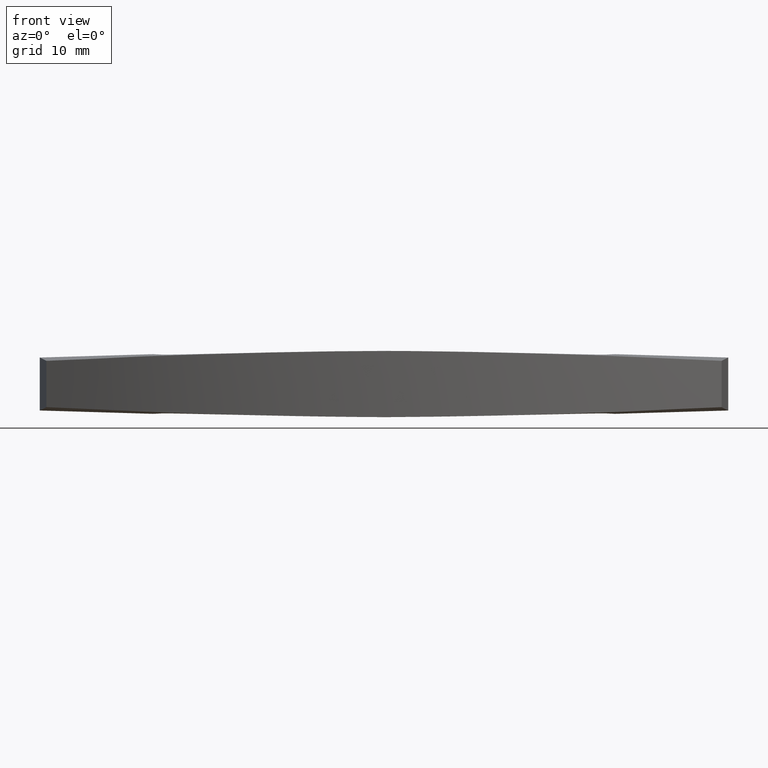
[diagram: clean part render]
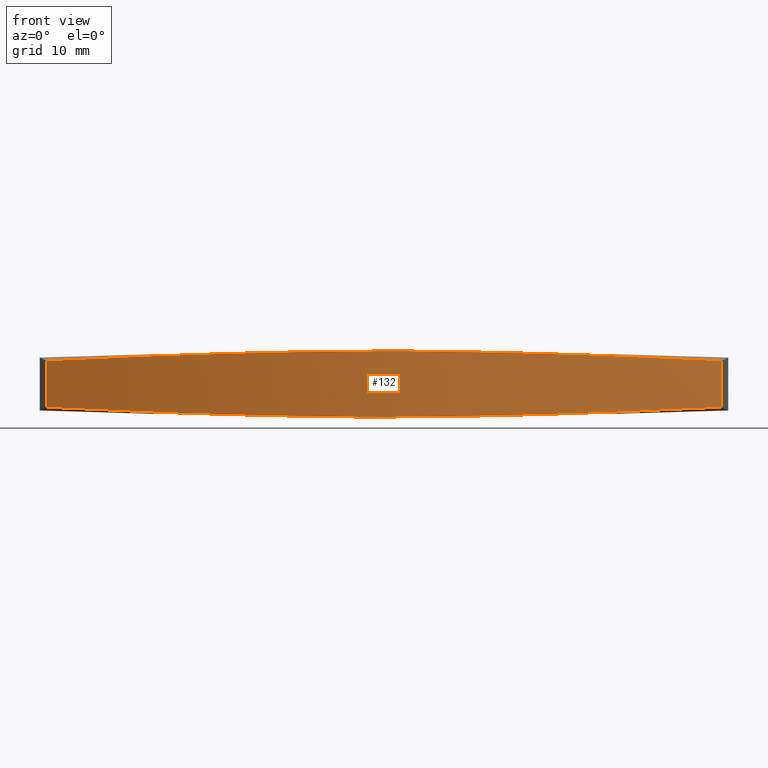
[diagram: same view with one face highlighted and labeled with its STEP entity id]
A machine part, front view. The second image highlights one B-rep face of the part: STEP entity #132.
In plain terms, the highlighted cylindrical surface (partial cylindrical patch) has radius 120 mm, axis along (-0, 0, -1).
Its self-contained STEP definition (entity closure, byte-faithful):
#132=ADVANCED_FACE('',(#258),#257,.T.);
#257=CYLINDRICAL_SURFACE('',#459,1.20000000000E+02);
#258=FACE_OUTER_BOUND('',#460,.T.);
#456=CARTESIAN_POINT('',(-1.47104979033E-14,-5.25624999398E+00,-9.69996000000E+01));
#457=DIRECTION('',(-8.15266839054E-21,-1.00000000000E+00,-2.12555598723E-17));
#458=DIRECTION('',(4.59410007655E-01,1.88759598230E-17,-8.88224321254E-01));
#459=AXIS2_PLACEMENT_3D('',#456,#457,#458);
#460=EDGE_LOOP('',(#732,#733,#734,#735));
#732=ORIENTED_EDGE('',*,*,#840,.T.);
#733=ORIENTED_EDGE('',*,*,#825,.F.);
#734=ORIENTED_EDGE('',*,*,#841,.T.);
#735=ORIENTED_EDGE('',*,*,#842,.F.);
#825=EDGE_CURVE('',#1027,#1034,#1035,.T.);
#840=EDGE_CURVE('',#1138,#1034,#1139,.T.);
#841=EDGE_CURVE('',#1027,#1145,#1146,.T.);
#842=EDGE_CURVE('',#1138,#1145,#1152,.T.);
#1027=VERTEX_POINT('',#1394);
#1034=VERTEX_POINT('',#1398);
#1035=LINE('',#1399,#1400);
#1138=VERTEX_POINT('',#1470);
#1139=(BOUNDED_CURVE() B_SPLINE_CURVE(3,(#1471,#1472,#1473,#1474,#1475,#1476,#1477,#1478,#1479,#1480,#1481,#1482,#1483,#1484,#1485,#1486,#1487,#1488,#1489,#1490,#1491,#1492,#1493,#1494,#1495,#1496,#1497,#1498,#1499,#1500,#1501,#1502,#1503,#1504,#1505,#1506,#1507,#1508,#1509,#1510,#1511,#1512,#1513,#1514,#1515,#1516,#1517,#1518,#1519,#1520,#1521,#1522,#1523,#1524,#1525,#1526,#1527,#1528,#1529,#1530,#1531,#1532,#1533,#1534,#1535,#1536),.UNSPECIFIED.,.F.,.F.) B_SPLINE_CURVE_WITH_KNOTS((4,2,2,2,2,2,2,2,2,2,2,2,2,2,2,2,2,2,2,2,2,2,2,2,2,2,2,2,2,2,2,2,4),(0.00000000000E+00,3.12500000000E-02,6.25000000000E-02,9.37500000000E-02,1.25000000000E-01,1.56250000000E-01,1.87500000000E-01,2.18750000000E-01,2.50000000000E-01,2.81250000000E-01,3.12500000000E-01,3.43750000000E-01,3.75000000000E-01,3.90625000000E-01,4.06250000000E-01,4.37500000000E-01,5.00000000000E-01,5.62500000000E-01,5.93750000000E-01,6.25000000000E-01,6.56250000000E-01,6.87500000000E-01,7.18750000000E-01,7.50000000000E-01,7.65625000000E-01,7.81250000000E-01,8.12500000000E-01,8.43750000000E-01,8.75000000000E-01,9.06250000000E-01,9.37500000000E-01,9.68750000000E-01,1.00000000000E+00),.UNSPECIFIED.) CURVE() GEOMETRIC_REPRESENTATION_ITEM() RATIONAL_B_SPLINE_CURVE((1.00000000000E+00,1.00000000000E+00,1.00000000000E+00,1.00000000000E+00,1.00000000000E+00,1.00000000000E+00,1.00000000000E+00,1.00000000000E+00,1.00000000000E+00,1.00000000000E+00,1.00000000000E+00,1.00000000000E+00,1.00000000000E+00,1.00000000000E+00,1.00000000000E+00,1.00000000000E+00,1.00000000000E+00,1.00000000000E+00,1.00000000000E+00,1.00000000000E+00,1.00000000000E+00,1.00000000000E+00,1.00000000000E+00,1.00000000000E+00,1.00000000000E+00,1.00000000000E+00,1.00000000000E+00,1.00000000000E+00,1.00000000000E+00,1.00000000000E+00,1.00000000000E+00,1.00000000000E+00,1.00000000000E+00,1.00000000000E+00,1.00000000000E+00,1.00000000000E+00,1.00000000000E+00,1.00000000000E+00,1.00000000000E+00,1.00000000000E+00,1.00000000000E+00,1.00000000000E+00,1.00000000000E+00,1.00000000000E+00,1.00000000000E+00,1.00000000000E+00,1.00000000000E+00,1.00000000000E+00,1.00000000000E+00,1.00000000000E+00,1.00000000000E+00,1.00000000000E+00,1.00000000000E+00,1.00000000000E+00,1.00000000000E+00,1.00000000000E+00,1.00000000000E+00,1.00000000000E+00,1.00000000000E+00,1.00000000000E+00,1.00000000000E+00,1.00000000000E+00,1.00000000000E+00,1.00000000000E+00,1.00000000000E+00,1.00000000000E+00)) REPRESENTATION_ITEM('') );
#1145=VERTEX_POINT('',#1537);
#1146=(BOUNDED_CURVE() B_SPLINE_CURVE(3,(#1538,#1539,#1540,#1541,#1542,#1543,#1544,#1545,#1546,#1547,#1548,#1549,#1550,#1551,#1552,#1553,#1554,#1555,#1556,#1557,#1558,#1559,#1560,#1561,#1562,#1563,#1564,#1565,#1566,#1567,#1568,#1569,#1570,#1571,#1572,#1573,#1574,#1575,#1576,#1577,#1578,#1579,#1580,#1581,#1582,#1583,#1584,#1585,#1586,#1587,#1588,#1589,#1590,#1591,#1592,#1593,#1594,#1595,#1596,#1597,#1598,#1599,#1600,#1601,#1602,#1603),.UNSPECIFIED.,.F.,.F.) B_SPLINE_CURVE_WITH_KNOTS((4,2,2,2,2,2,2,2,2,2,2,2,2,2,2,2,2,2,2,2,2,2,2,2,2,2,2,2,2,2,2,2,4),(0.00000000000E+00,3.12500000000E-02,6.25000000000E-02,9.37500000000E-02,1.25000000000E-01,1.56250000000E-01,1.87500000000E-01,2.18750000000E-01,2.50000000000E-01,2.81250000000E-01,3.12500000000E-01,3.43750000000E-01,3.75000000000E-01,3.90625000000E-01,4.06250000000E-01,4.37500000000E-01,5.00000000000E-01,5.62500000000E-01,5.93750000000E-01,6.25000000000E-01,6.56250000000E-01,6.87500000000E-01,7.18750000000E-01,7.50000000000E-01,7.65625000000E-01,7.81250000000E-01,8.12500000000E-01,8.43750000000E-01,8.75000000000E-01,9.06250000000E-01,9.37500000000E-01,9.68750000000E-01,1.00000000000E+00),.UNSPECIFIED.) CURVE() GEOMETRIC_REPRESENTATION_ITEM() RATIONAL_B_SPLINE_CURVE((1.00000000000E+00,1.00000000000E+00,1.00000000000E+00,1.00000000000E+00,1.00000000000E+00,1.00000000000E+00,1.00000000000E+00,1.00000000000E+00,1.00000000000E+00,1.00000000000E+00,1.00000000000E+00,1.00000000000E+00,1.00000000000E+00,1.00000000000E+00,1.00000000000E+00,1.00000000000E+00,1.00000000000E+00,1.00000000000E+00,1.00000000000E+00,1.00000000000E+00,1.00000000000E+00,1.00000000000E+00,1.00000000000E+00,1.00000000000E+00,1.00000000000E+00,1.00000000000E+00,1.00000000000E+00,1.00000000000E+00,1.00000000000E+00,1.00000000000E+00,1.00000000000E+00,1.00000000000E+00,1.00000000000E+00,1.00000000000E+00,1.00000000000E+00,1.00000000000E+00,1.00000000000E+00,1.00000000000E+00,1.00000000000E+00,1.00000000000E+00,1.00000000000E+00,1.00000000000E+00,1.00000000000E+00,1.00000000000E+00,1.00000000000E+00,1.00000000000E+00,1.00000000000E+00,1.00000000000E+00,1.00000000000E+00,1.00000000000E+00,1.00000000000E+00,1.00000000000E+00,1.00000000000E+00,1.00000000000E+00,1.00000000000E+00,1.00000000000E+00,1.00000000000E+00,1.00000000000E+00,1.00000000000E+00,1.00000000000E+00,1.00000000000E+00,1.00000000000E+00,1.00000000000E+00,1.00000000000E+00,1.00000000000E+00,1.00000000000E+00)) REPRESENTATION_ITEM('') );
#1152=LINE('',#1604,#1605);
#1394=CARTESIAN_POINT('',(-5.10000252651E+01,-3.50001763252E+00,1.16235900791E+01));
#1398=CARTESIAN_POINT('',(-5.10000252651E+01,3.50001763252E+00,1.16235900791E+01));
#1399=CARTESIAN_POINT('',(-5.10000252651E+01,-3.50001763252E+00,1.16235900791E+01));
#1400=VECTOR('',#1401,7.00003526505E+00);
#1401=DIRECTION('',(-1.42107831232E-14,1.00000000000E+00,0.00000000000E+00));
#1470=CARTESIAN_POINT('',(5.10005567320E+01,3.50002836602E+00,1.16233405467E+01));
#1471=CARTESIAN_POINT('',(5.10005567320E+01,3.50002836602E+00,1.16233405467E+01));
#1472=CARTESIAN_POINT('',(4.99990027260E+01,3.53191644947E+00,1.20935893878E+01));
#1473=CARTESIAN_POINT('',(4.89934658437E+01,3.56917836643E+00,1.25488062897E+01));
#1474=CARTESIAN_POINT('',(4.69744928799E+01,3.65293437837E+00,1.34296082497E+01));
#1475=CARTESIAN_POINT('',(4.59610572541E+01,3.69944199791E+00,1.38551932338E+01));
#1476=CARTESIAN_POINT('',(4.39262770585E+01,3.79847733191E+00,1.46771037058E+01));
#1477=CARTESIAN_POINT('',(4.29049330410E+01,3.85102068843E+00,1.50734291993E+01));
#1478=CARTESIAN_POINT('',(4.08542340362E+01,3.95675366119E+00,1.58371347740E+01));
#1479=CARTESIAN_POINT('',(3.98248733576E+01,4.00976409612E+00,1.62045170789E+01));
#1480=CARTESIAN_POINT('',(3.77579620699E+01,4.10943189535E+00,1.69105793602E+01));
#1481=CARTESIAN_POINT('',(3.67204138399E+01,4.15617011627E+00,1.72492576519E+01));
#1482=CARTESIAN_POINT('',(3.46371024728E+01,4.24178966088E+00,1.78980126803E+01));
#1483=CARTESIAN_POINT('',(3.35913397397E+01,4.28068863067E+00,1.82080886338E+01));
#1484=CARTESIAN_POINT('',(3.14916798309E+01,4.35291588182E+00,1.87996388891E+01));
#1485=CARTESIAN_POINT('',(3.04377858166E+01,4.38634429937E+00,1.90811118784E+01));
#1486=CARTESIAN_POINT('',(2.83220212118E+01,4.45271407633E+00,1.96153801273E+01));
#1487=CARTESIAN_POINT('',(2.72601484531E+01,4.48558384455E+00,1.98681766565E+01));
#1488=CARTESIAN_POINT('',(2.51284134012E+01,4.55117308182E+00,2.03450025783E+01));
#1489=CARTESIAN_POINT('',(2.40585506426E+01,4.58387546456E+00,2.05690324615E+01));
#1490=CARTESIAN_POINT('',(2.19107366775E+01,4.64744466157E+00,2.09881824868E+01));
#1491=CARTESIAN_POINT('',(2.08327847052E+01,4.67828594326E+00,2.11833031089E+01));
#1492=CARTESIAN_POINT('',(1.86686189780E+01,4.73485186311E+00,2.15444262994E+01));
#1493=CARTESIAN_POINT('',(1.75824049788E+01,4.76057277979E+00,2.17104284596E+01));
#1494=CARTESIAN_POINT('',(1.54016410278E+01,4.80719564424E+00,2.20130097326E+01));
#1495=CARTESIAN_POINT('',(1.43070914533E+01,4.82810919888E+00,2.21495887323E+01));
#1496=CARTESIAN_POINT('',(1.26589770653E+01,4.85703079192E+00,2.23321049657E+01));
#1497=CARTESIAN_POINT('',(1.21081627833E+01,4.86627787438E+00,2.23892524576E+01));
#1498=CARTESIAN_POINT('',(1.10075060800E+01,4.88420114409E+00,2.24957576798E+01));
#1499=CARTESIAN_POINT('',(1.04574356014E+01,4.89288345360E+00,2.25451464881E+01));
#1500=CARTESIAN_POINT('',(8.80798813229E+00,4.91856349385E+00,2.26817971932E+01));
#1501=CARTESIAN_POINT('',(7.70937550200E+00,4.93514020660E+00,2.27575455157E+01));
#1502=CARTESIAN_POINT('',(4.41660481639E+00,4.97878234506E+00,2.29392473044E+01));
#1503=CARTESIAN_POINT('',(2.22551180931E+00,4.99975538627E+00,2.29996909166E+01));
#1504=CARTESIAN_POINT('',(-2.14837562156E+00,5.00024036304E+00,2.30010966875E+01));
#1505=CARTESIAN_POINT('',(-4.33116922158E+00,4.97965187488E+00,2.29420613971E+01));
#1506=CARTESIAN_POINT('',(-7.59936365699E+00,4.93671086174E+00,2.27645013133E+01));
#1507=CARTESIAN_POINT('',(-8.68776181648E+00,4.92037985997E+00,2.26904712650E+01));
#1508=CARTESIAN_POINT('',(-1.08625867703E+01,4.88660989978E+00,2.25127197560E+01));
#1509=CARTESIAN_POINT('',(-1.19490147868E+01,4.86929678193E+00,2.24089979754E+01));
#1510=CARTESIAN_POINT('',(-1.41198749924E+01,4.83154204524E+00,2.21717948691E+01));
#1511=CARTESIAN_POINT('',(-1.52043069387E+01,4.81107521936E+00,2.20383136378E+01));
#1512=CARTESIAN_POINT('',(-1.73711497892E+01,4.76535030234E+00,2.17414585590E+01));
#1513=CARTESIAN_POINT('',(-1.84535605687E+01,4.74007870947E+00,2.15780848447E+01));
#1514=CARTESIAN_POINT('',(-2.06163427790E+01,4.68424190892E+00,2.12212427107E+01));
#1515=CARTESIAN_POINT('',(-2.16967134742E+01,4.65359970753E+00,2.10277746720E+01));
#1516=CARTESIAN_POINT('',(-2.38554265403E+01,4.59000738034E+00,2.06104640768E+01));
#1517=CARTESIAN_POINT('',(-2.49337694029E+01,4.55710722610E+00,2.03866214891E+01));
#1518=CARTESIAN_POINT('',(-2.65497588256E+01,4.50743901572E+00,2.00278103334E+01));
#1519=CARTESIAN_POINT('',(-2.70881676456E+01,4.49081604996E+00,1.99043648207E+01));
#1520=CARTESIAN_POINT('',(-2.81644735397E+01,4.45746557062E+00,1.96497388212E+01));
#1521=CARTESIAN_POINT('',(-2.87018916843E+01,4.44075347012E+00,1.95186678536E+01));
#1522=CARTESIAN_POINT('',(-3.03096344803E+01,4.39039057112E+00,1.91147719663E+01));
#1523=CARTESIAN_POINT('',(-3.13763943509E+01,4.35667160309E+00,1.88310426814E+01));
#1524=CARTESIAN_POINT('',(-3.34996547581E+01,4.28399551326E+00,1.82348958662E+01));
#1525=CARTESIAN_POINT('',(-3.45561504674E+01,4.24490795532E+00,1.79224801160E+01));
#1526=CARTESIAN_POINT('',(-3.66588306893E+01,4.15885078737E+00,1.72691278559E+01));
#1527=CARTESIAN_POINT('',(-3.77050148011E+01,4.11186444993E+00,1.69281921977E+01));
#1528=CARTESIAN_POINT('',(-3.97871590761E+01,4.01164422825E+00,1.62178542588E+01));
#1529=CARTESIAN_POINT('',(-4.08231164696E+01,3.95832816022E+00,1.58484538765E+01));
#1530=CARTESIAN_POINT('',(-4.28850502605E+01,3.85201484689E+00,1.50810966706E+01));
#1531=CARTESIAN_POINT('',(-4.39110336673E+01,3.79920902241E+00,1.46831370198E+01));
#1532=CARTESIAN_POINT('',(-4.59532036171E+01,3.69977287070E+00,1.38584881276E+01));
#1533=CARTESIAN_POINT('',(-4.69693894125E+01,3.65312529328E+00,1.34317988098E+01));
#1534=CARTESIAN_POINT('',(-4.89920212123E+01,3.56919965445E+00,1.25494723028E+01));
#1535=CARTESIAN_POINT('',(-4.99984666073E+01,3.53190692334E+00,1.20938351236E+01));
#1536=CARTESIAN_POINT('',(-5.10000252651E+01,3.50001763252E+00,1.16235900791E+01));
#1537=CARTESIAN_POINT('',(5.10005567320E+01,-3.50002836602E+00,1.16233405467E+01));
#1538=CARTESIAN_POINT('',(-5.10000252651E+01,-3.50001763252E+00,1.16235900791E+01));
#1539=CARTESIAN_POINT('',(-4.99984689943E+01,-3.53190684734E+00,1.20938340028E+01));
#1540=CARTESIAN_POINT('',(-4.89929299227E+01,-3.56916988525E+00,1.25490459682E+01));
#1541=CARTESIAN_POINT('',(-4.69739527261E+01,-3.65292803169E+00,1.34298380189E+01));
#1542=CARTESIAN_POINT('',(-4.59605150567E+01,-3.69943666468E+00,1.38554180301E+01));
#1543=CARTESIAN_POINT('',(-4.39257309132E+01,-3.79847380720E+00,1.46773185216E+01));
#1544=CARTESIAN_POINT('',(-4.29043849913E+01,-3.85101795838E+00,1.50736390074E+01));
#1545=CARTESIAN_POINT('',(-4.08536823100E+01,-3.95675217359E+00,1.58373345330E+01));
#1546=CARTESIAN_POINT('',(-3.98243198584E+01,-4.00976303378E+00,1.62047117965E+01));
#1547=CARTESIAN_POINT('',(-3.77574051532E+01,-4.10943133463E+00,1.69107639605E+01));
#1548=CARTESIAN_POINT('',(-3.67198552794E+01,-4.15616965278E+00,1.72494371757E+01));
#1549=CARTESIAN_POINT('',(-3.46365407607E+01,-4.24178930337E+00,1.78981820127E+01));
#1550=CARTESIAN_POINT('',(-3.35907765197E+01,-4.28068828387E+00,1.82082528514E+01));
#1551=CARTESIAN_POINT('',(-3.14911137383E+01,-4.35291566614E+00,1.87997928368E+01));
#1552=CARTESIAN_POINT('',(-3.04372183596E+01,-4.38634421845E+00,1.90812606709E+01));
#1553=CARTESIAN_POINT('',(-2.83214511731E+01,-4.45271444370E+00,1.96155185697E+01));
#1554=CARTESIAN_POINT('',(-2.72595771960E+01,-4.48558449180E+00,1.98683099042E+01));
#1555=CARTESIAN_POINT('',(-2.51278398480E+01,-4.55117424913E+00,2.03451253985E+01));
#1556=CARTESIAN_POINT('',(-2.40579760115E+01,-4.58387687203E+00,2.05691500490E+01));
#1557=CARTESIAN_POINT('',(-2.19101600278E+01,-4.64744639876E+00,2.09882895710E+01));
#1558=CARTESIAN_POINT('',(-2.08322071145E+01,-4.67828776468E+00,2.11834049226E+01));
#1559=CARTESIAN_POINT('',(-1.86680396408E+01,-4.73485365650E+00,2.15445175334E+01));
#1560=CARTESIAN_POINT('',(-1.75818248371E+01,-4.76057449390E+00,2.17105143841E+01));
#1561=CARTESIAN_POINT('',(-1.54010594197E+01,-4.80719717089E+00,2.20130849981E+01));
#1562=CARTESIAN_POINT('',(-1.43065091834E+01,-4.82811061751E+00,2.21496586481E+01));
#1563=CARTESIAN_POINT('',(-1.26583939131E+01,-4.85703208098E+00,2.23321668263E+01));
#1564=CARTESIAN_POINT('',(-1.21075793514E+01,-4.86627912548E+00,2.23893116266E+01));
#1565=CARTESIAN_POINT('',(-1.10069221097E+01,-4.88420233584E+00,2.24958114718E+01));
#1566=CARTESIAN_POINT('',(-1.04568513808E+01,-4.89288462539E+00,2.25451975927E+01));
#1567=CARTESIAN_POINT('',(-8.80740321814E+00,-4.91856462507E+00,2.26818402388E+01));
#1568=CARTESIAN_POINT('',(-7.70879020176E+00,-4.93514128645E+00,2.27575831932E+01));
#1569=CARTESIAN_POINT('',(-4.41601858483E+00,-4.97878316279E+00,2.29392688908E+01));
#1570=CARTESIAN_POINT('',(-2.22492525938E+00,-4.99975587810E+00,2.29997017937E+01));
#1571=CARTESIAN_POINT('',(2.14896221130E+00,-5.00023988817E+00,2.30010861847E+01));
#1572=CARTESIAN_POINT('',(4.33175553580E+00,-4.97965106772E+00,2.29420402237E+01));
#1573=CARTESIAN_POINT('',(7.59994911889E+00,-4.93670978674E+00,2.27644641628E+01));
#1574=CARTESIAN_POINT('',(8.68834692103E+00,-4.92037873149E+00,2.26904287935E+01));
#1575=CARTESIAN_POINT('',(1.08631710135E+01,-4.88660871325E+00,2.25126666521E+01));
#1576=CARTESIAN_POINT('',(1.19495985256E+01,-4.86929554269E+00,2.24089395603E+01));
#1577=CARTESIAN_POINT('',(1.41204575744E+01,-4.83154063956E+00,2.21717258411E+01));
#1578=CARTESIAN_POINT('',(1.52048888683E+01,-4.81107370759E+00,2.20382393084E+01));
#1579=CARTESIAN_POINT('',(1.73717302660E+01,-4.76534860060E+00,2.17413736371E+01));
#1580=CARTESIAN_POINT('',(1.84541402451E+01,-4.74007692395E+00,2.15779946316E+01));
#1581=CARTESIAN_POINT('',(2.06169207065E+01,-4.68424007838E+00,2.12211419253E+01));
#1582=CARTESIAN_POINT('',(2.16972904536E+01,-4.65359794431E+00,2.10276686057E+01));
#1583=CARTESIAN_POINT('',(2.38560014746E+01,-4.59000592974E+00,2.06103474585E+01));
#1584=CARTESIAN_POINT('',(2.49343432402E+01,-4.55710601149E+00,2.03864995999E+01));
#1585=CARTESIAN_POINT('',(2.65503309037E+01,-4.50743819266E+00,2.00276805457E+01));
#1586=CARTESIAN_POINT('',(2.70887391183E+01,-4.49081536332E+00,1.99042324016E+01));
#1587=CARTESIAN_POINT('',(2.81650437633E+01,-4.45746515064E+00,1.96496011417E+01));
#1588=CARTESIAN_POINT('',(2.87024612782E+01,-4.44075317983E+00,1.95185275444E+01));
#1589=CARTESIAN_POINT('',(3.03102021165E+01,-4.39039062908E+00,1.91146237934E+01));
#1590=CARTESIAN_POINT('',(3.13769606074E+01,-4.35667180748E+00,1.88308892914E+01));
#1591=CARTESIAN_POINT('',(3.35002181107E+01,-4.28399585763E+00,1.82347320933E+01));
#1592=CARTESIAN_POINT('',(3.45567122963E+01,-4.24490831083E+00,1.79223111772E+01));
#1593=CARTESIAN_POINT('',(3.66593893370E+01,-4.15885124621E+00,1.72689486334E+01));
#1594=CARTESIAN_POINT('',(3.77055717912E+01,-4.11186500299E+00,1.69280078575E+01));
#1595=CARTESIAN_POINT('',(3.97877126251E+01,-4.01164527791E+00,1.62176597279E+01));
#1596=CARTESIAN_POINT('',(4.08236682357E+01,-3.95832963291E+00,1.58482542723E+01));
#1597=CARTESIAN_POINT('',(4.28855983344E+01,-3.85201756298E+00,1.50808869618E+01));
#1598=CARTESIAN_POINT('',(4.39115798308E+01,-3.79921253537E+00,1.46829222800E+01));
#1599=CARTESIAN_POINT('',(4.59537458232E+01,-3.69977819689E+00,1.38582633696E+01));
#1600=CARTESIAN_POINT('',(4.69699295716E+01,-3.65313163541E+00,1.34315690647E+01));
#1601=CARTESIAN_POINT('',(4.89925571341E+01,-3.56920813460E+00,1.25492326292E+01));
#1602=CARTESIAN_POINT('',(4.99990003388E+01,-3.53191652547E+00,1.20935905086E+01));
#1603=CARTESIAN_POINT('',(5.10005567320E+01,-3.50002836602E+00,1.16233405467E+01));
#1604=CARTESIAN_POINT('',(5.10005567320E+01,3.50002836602E+00,1.16233405467E+01));
#1605=VECTOR('',#1606,7.00005673204E+00);
#1606=DIRECTION('',(-4.26322186295E-14,-1.00000000000E+00,1.72558980167E-14));